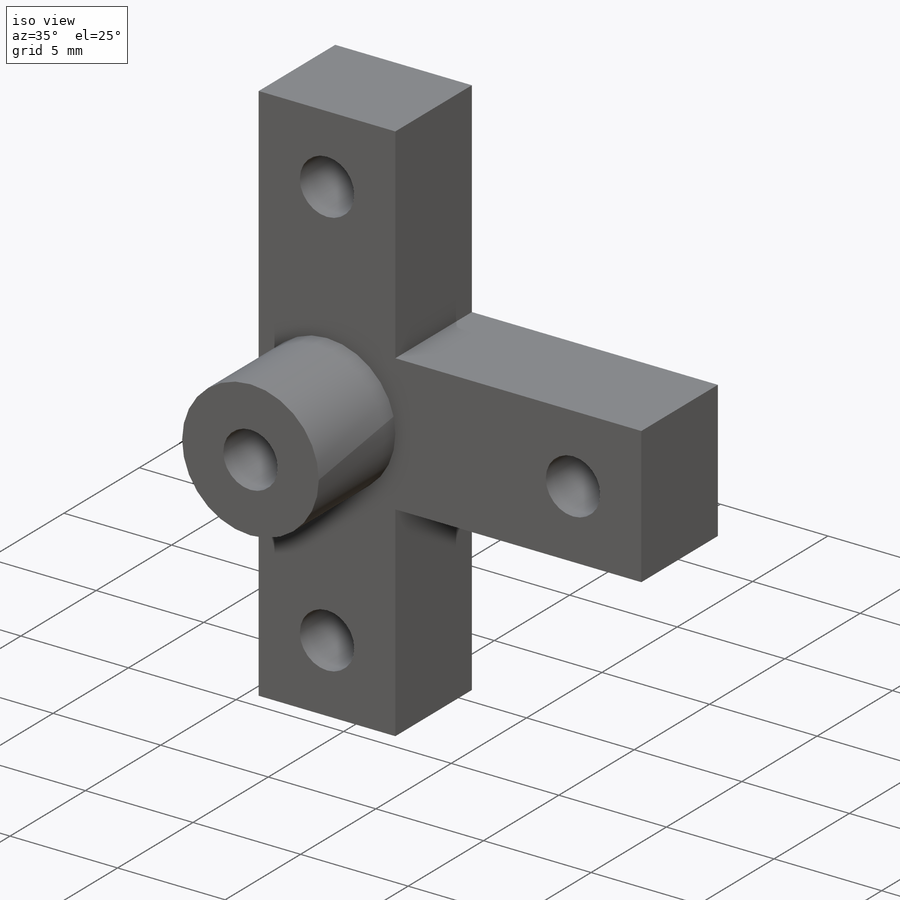
[diagram: iso view]
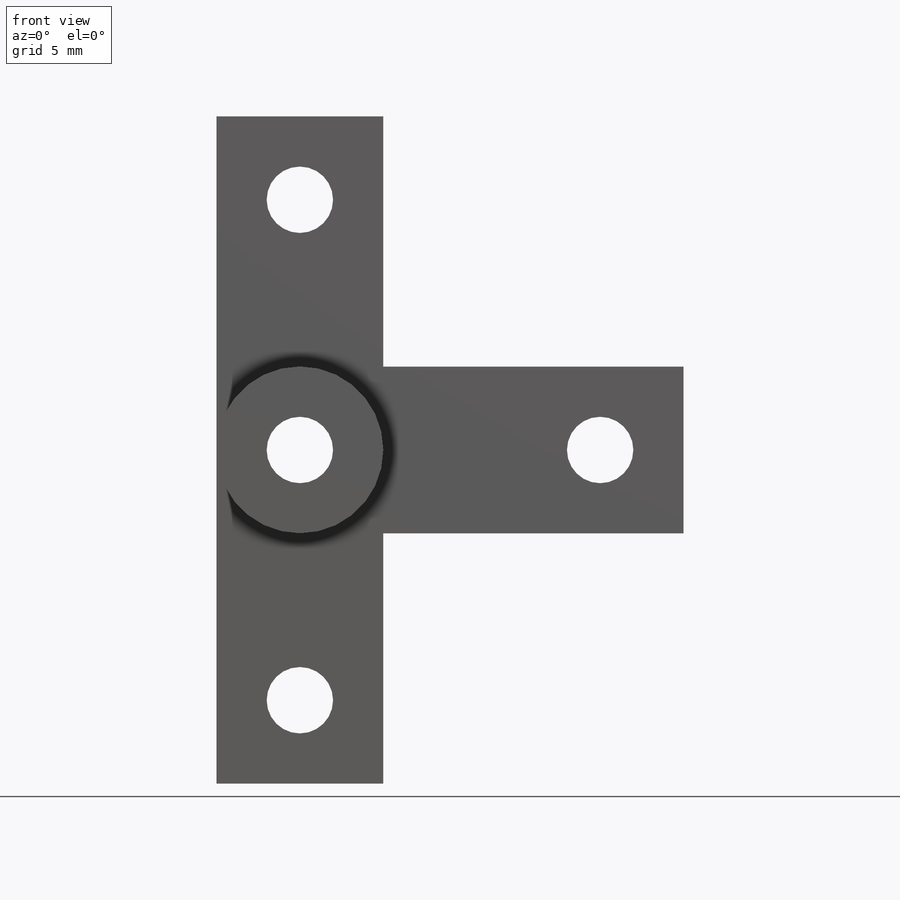
[diagram: front view]
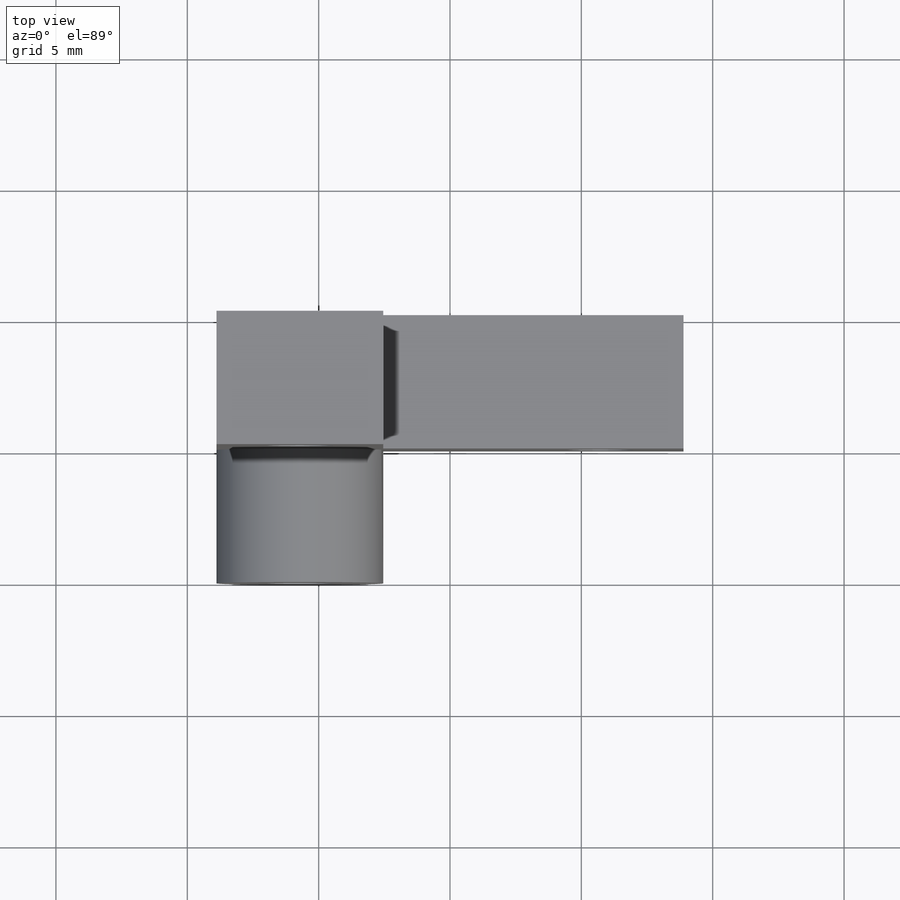
[diagram: top view]
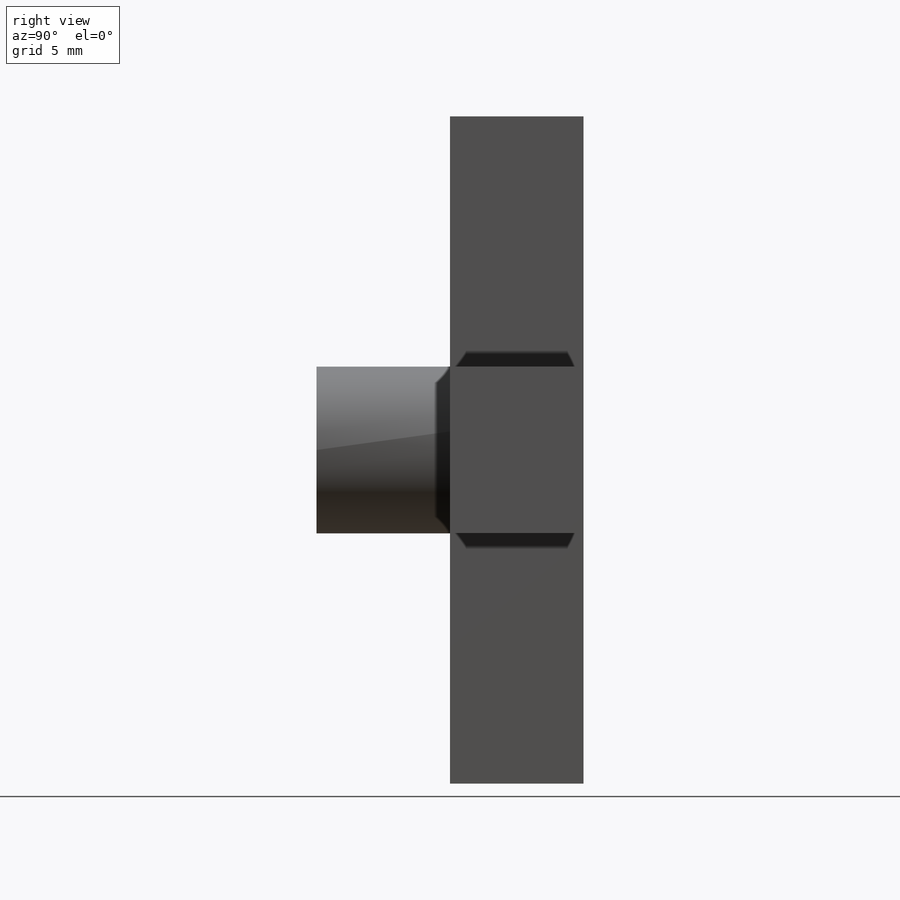
[diagram: right view]
SOLIDWORKS PART (.sldprt)
format: sldprt  version: not decoded by parser v0  size: 226,304 bytes
history: native  units: mm
features: sketch x8, hole x2, cut_extrude x2, material x1, extrude x1 (+16 scaffold rows collapsed)
feature tree (30):
  scaffold x16  (default folders/planes/origin — collapsed)
  material  "Material <not specified>"
  sketch  "Sketch1"  dims[D1=17.78mm]
  extrude  "Extrude1"  Depth=10.16mm
  sketch  "Sketch4"  dims[D1=9.398mm]
  hole  "3/8 (0.375) Diameter Hole1"  Diameter=9.525mm Depth=12.7mm
  sketch  "3DSketch4"
  sketch  "Sketch9"  dims[hole-wizard template sketch: 47 standard entries collapsed; hole parameters kept: c15.Hole Depth=12.7mm c15.D3=~14.816244mm c15.Drill Angle=118.0deg]
  sketch  "Sketch11"  dims[D1=3.175mm]
  cut_extrude  "Extrude3"  Depth=5.08mm
  hole  "#39 (0.0995) Diameter Hole1"  Diameter=2.5273mm Depth=10.16mm
  sketch  "3DSketch5"
  sketch  "Sketch13"  dims[hole-wizard template sketch: 59 standard entries collapsed; hole parameters kept: c18.Thru Hole Dia.=2.5273mm c18.Thru Hole Depth=10.16mm]
  sketch  "Sketch14"  dims[D1=6.858mm]
  cut_extrude  "Extrude4"  [1 undecoded]
decode coverage: 10 of 13 modeling features carry decoded parameters
note: ~ marks probable driven/reference dimensions
note: 1 parameter value undecoded
note: suppression state not decoded; provenance and decode notes live in map.json
